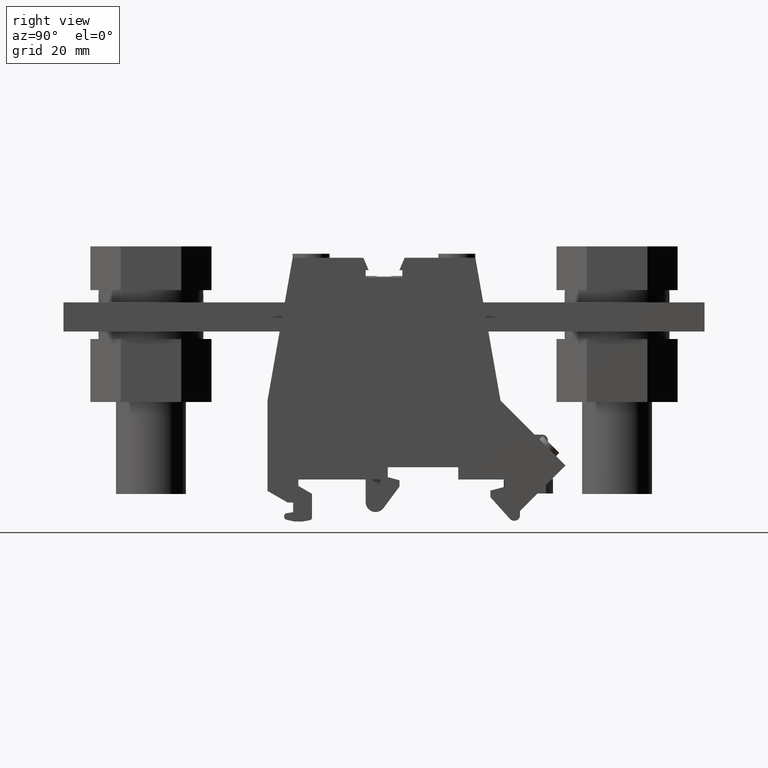
[diagram: clean part render]
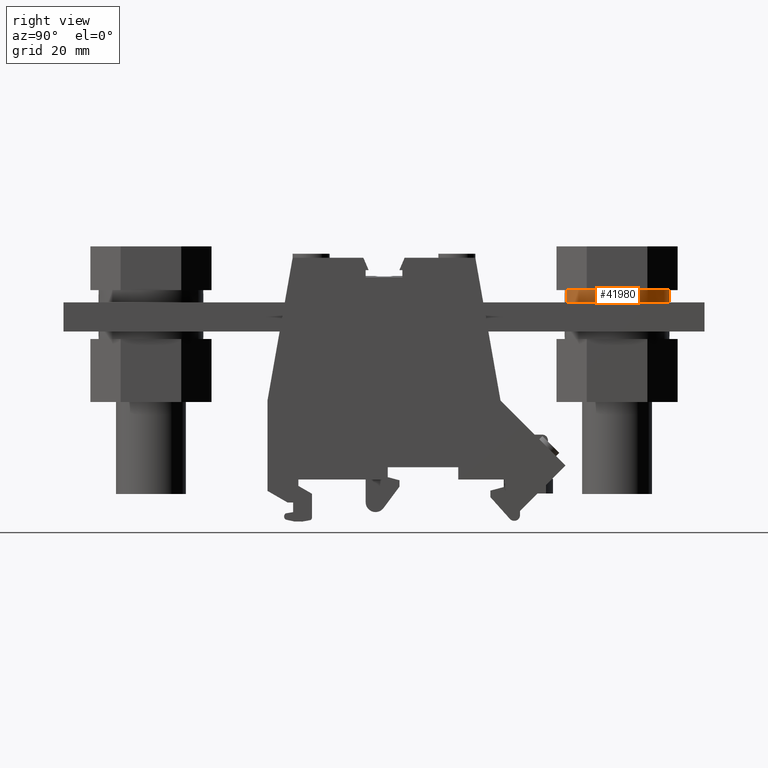
[diagram: same view with one face highlighted and labeled with its STEP entity id]
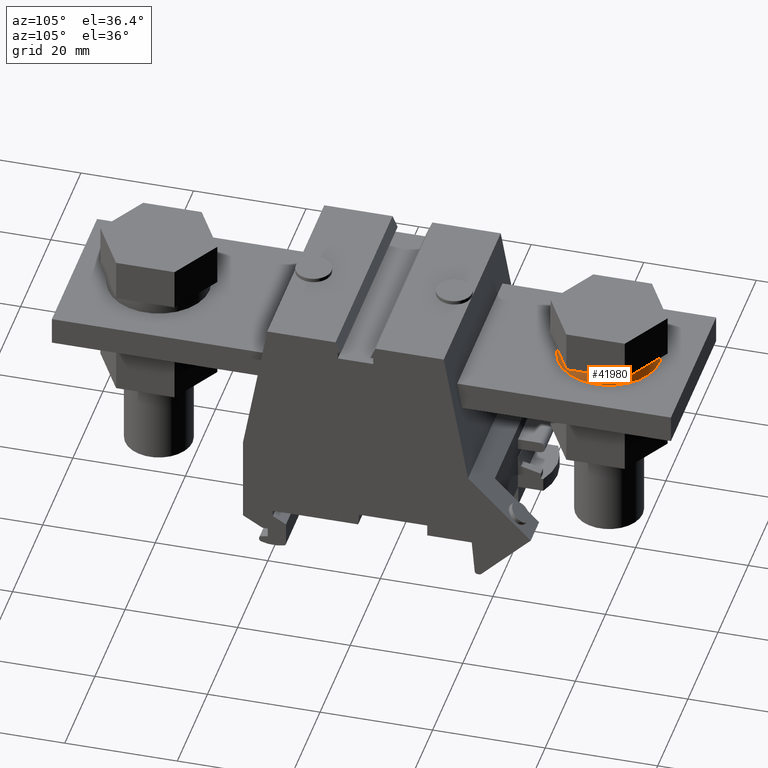
[diagram: same view with one face highlighted and labeled with its STEP entity id]
A machine part, right view. The second image highlights one B-rep face of the part: STEP entity #41980.
A second angle (auxiliary view) of the same face is appended — the face is thin or edge-on in the first view.
In plain terms, the highlighted cylindrical surface (partial cylindrical patch) has radius 9 mm, axis along (0, 0, -1).
Its self-contained STEP definition (entity closure, byte-faithful):
#10770=CARTESIAN_POINT('',(-139.308318234203,408.024378044622,21.5));
#10780=DIRECTION('',(0.,-1.,0.));
#10790=DIRECTION('',(-0.968343282865841,0.,0.249622287724086));
#10800=AXIS2_PLACEMENT_3D('',#10770,#10780,#10790);
#10810=CIRCLE('',#10800,9.);
#10840=CARTESIAN_POINT('',(-148.023407779996,408.024378044622,
23.7466005895168));
#10850=VERTEX_POINT('',#10840);
#10880=CARTESIAN_POINT('',(-147.102546868263,408.024378044622,17.));
#10890=VERTEX_POINT('',#10880);
#10900=EDGE_CURVE('',#10850,#10890,#10810,.T.);
#17130=CARTESIAN_POINT('',(-139.308318234203,405.924378044622,21.5));
#17140=DIRECTION('',(0.,-1.,0.));
#17150=DIRECTION('',(-0.968343282865841,0.,0.249622287724086));
#17160=AXIS2_PLACEMENT_3D('',#17130,#17140,#17150);
#17170=CIRCLE('',#17160,9.);
#17180=CARTESIAN_POINT('',(-148.023407779996,405.924378044622,
23.7466005895168));
#17190=VERTEX_POINT('',#17180);
#17200=CARTESIAN_POINT('',(-130.593228688411,405.924378044622,
19.2533994104832));
#17210=VERTEX_POINT('',#17200);
#17220=EDGE_CURVE('',#17190,#17210,#17170,.T.);
#39250=CARTESIAN_POINT('',(-131.514089600143,408.024378044622,17.));
#39260=VERTEX_POINT('',#39250);
#39330=CARTESIAN_POINT('',(-139.308318234203,408.024378044622,12.5));
#39340=VERTEX_POINT('',#39330);
#39370=EDGE_CURVE('',#39340,#39260,#10810,.T.);
#40350=EDGE_CURVE('',#10890,#39340,#10810,.T.);
#41710=CARTESIAN_POINT('',(-139.308318234203,405.924378044622,21.5));
#41720=DIRECTION('',(0.,-1.,0.));
#41730=DIRECTION('',(-0.968343282865841,0.,0.249622287724086));
#41740=AXIS2_PLACEMENT_3D('',#41710,#41720,#41730);
#41750=CYLINDRICAL_SURFACE('',#41740,9.);
#41760=CARTESIAN_POINT('',(-148.023407779996,405.924378044622,
23.7466005895168));
#41770=DIRECTION('',(0.,-1.,0.));
#41780=VECTOR('',#41770,1.);
#41790=LINE('',#41760,#41780);
#41800=EDGE_CURVE('',#10850,#17190,#41790,.T.);
#41810=ORIENTED_EDGE('',*,*,#41800,.F.);
#41820=ORIENTED_EDGE('',*,*,#17220,.F.);
#41830=CARTESIAN_POINT('',(-130.593228688411,405.924378044622,
19.2533994104832));
#41840=DIRECTION('',(0.,-1.,0.));
#41850=VECTOR('',#41840,1.);
#41860=LINE('',#41830,#41850);
#41870=CARTESIAN_POINT('',(-130.593228688411,408.024378044622,
19.2533994104832));
#41880=VERTEX_POINT('',#41870);
#41890=EDGE_CURVE('',#41880,#17210,#41860,.T.);
#41900=ORIENTED_EDGE('',*,*,#41890,.T.);
#41910=EDGE_CURVE('',#39260,#41880,#10810,.T.);
#41920=ORIENTED_EDGE('',*,*,#41910,.T.);
#41930=ORIENTED_EDGE('',*,*,#39370,.T.);
#41940=ORIENTED_EDGE('',*,*,#40350,.T.);
#41950=ORIENTED_EDGE('',*,*,#10900,.T.);
#41960=EDGE_LOOP('',(#41950,#41940,#41930,#41920,#41900,#41820,#41810));
#41970=FACE_OUTER_BOUND('',#41960,.T.);
#41980=ADVANCED_FACE('',(#41970),#41750,.T.);